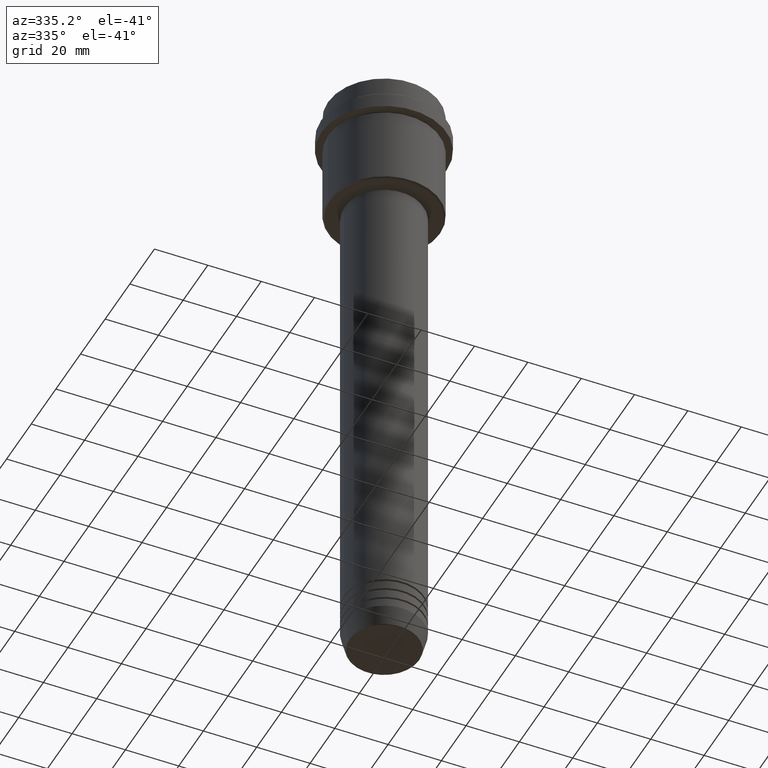
[diagram: clean part render]
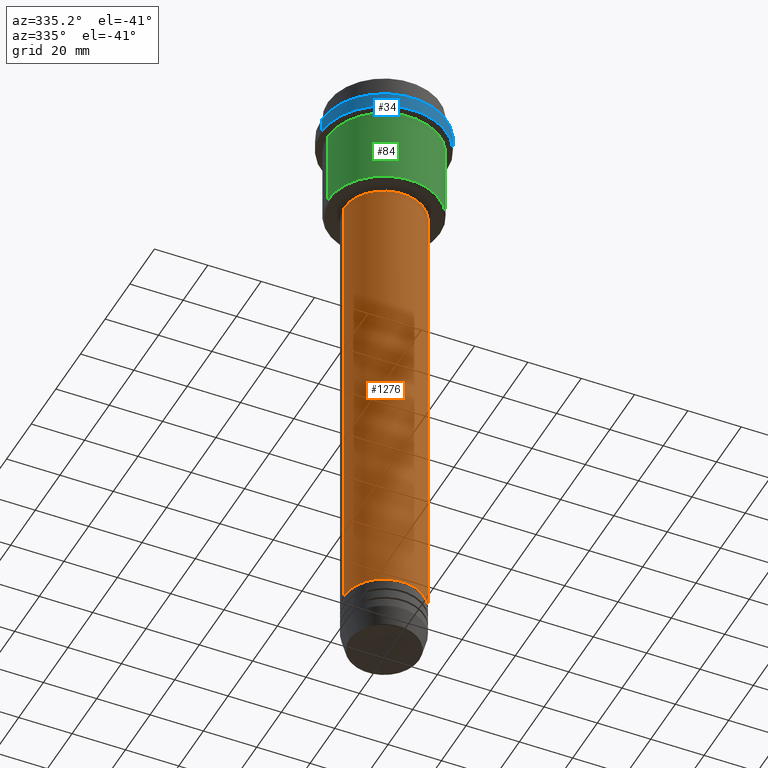
[diagram: same view with three faces highlighted in distinct colors, each labeled with its STEP entity id]
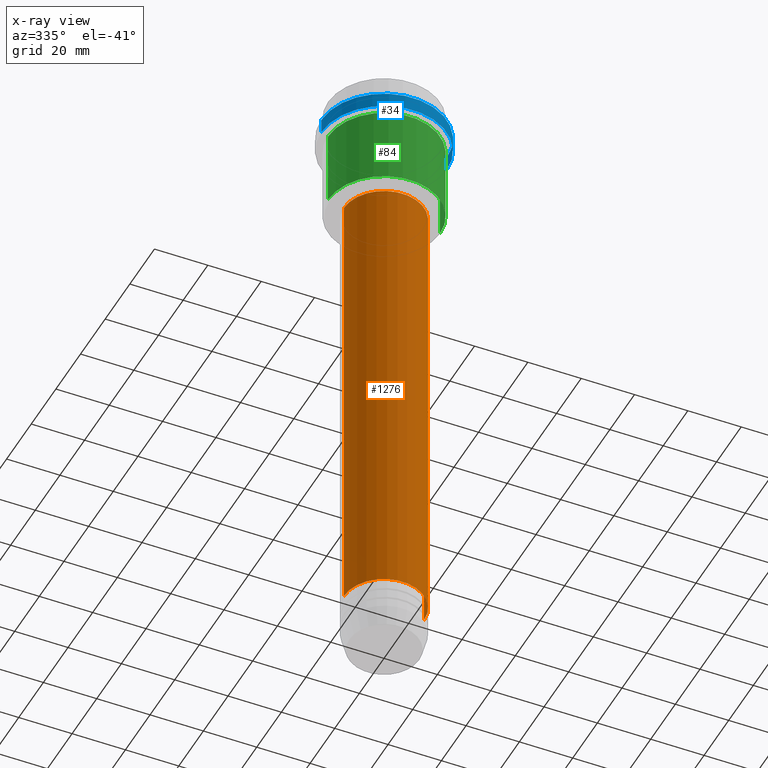
[diagram: x-ray of the same camera — body ghosted, the three highlighted faces saturated]
A machine part, auxiliary view with three faces highlighted in distinct colors.
The next image is the same camera in x-ray (body ghosted, the three faces saturated) — at least one of them is partly hidden behind the body in this view.
Their STEP definitions:

[orange] entity #1276 — the highlighted cylindrical surface (partial cylindrical patch) has radius 15 mm, axis along (-0, -0, 1).
#28 = CARTESIAN_POINT ( 'NONE',  ( -15.00000000000000000, 1.836970198721029589E-15, 0.000000000000000000 ) ) ;
#32 = CARTESIAN_POINT ( 'NONE',  ( 0.000000000000000000, 0.000000000000000000, -220.9999999999999432 ) ) ;
#164 = ORIENTED_EDGE ( 'NONE', *, *, #720, .T. ) ;
#227 = AXIS2_PLACEMENT_3D ( 'NONE', #1022, #454, #575 ) ;
#274 = LINE ( 'NONE', #28, #965 ) ;
#303 = EDGE_CURVE ( 'NONE', #323, #418, #595, .T. ) ;
#323 = VERTEX_POINT ( 'NONE', #592 ) ;
#330 = ORIENTED_EDGE ( 'NONE', *, *, #303, .F. ) ;
#366 = CARTESIAN_POINT ( 'NONE',  ( 0.000000000000000000, 0.000000000000000000, 0.000000000000000000 ) ) ;
#400 = CIRCLE ( 'NONE', #1155, 15.00000000000000000 ) ;
#403 = VERTEX_POINT ( 'NONE', #781 ) ;
#412 = CARTESIAN_POINT ( 'NONE',  ( -15.00000000000000000, 1.836970198721029589E-15, -220.9999999999999432 ) ) ;
#418 = VERTEX_POINT ( 'NONE', #1189 ) ;
#454 = DIRECTION ( 'NONE',  ( -0.000000000000000000, -0.000000000000000000, 1.000000000000000000 ) ) ;
#469 = DIRECTION ( 'NONE',  ( -0.000000000000000000, -0.000000000000000000, 1.000000000000000000 ) ) ;
#471 = DIRECTION ( 'NONE',  ( 1.000000000000000000, 0.000000000000000000, 0.000000000000000000 ) ) ;
#475 = FACE_OUTER_BOUND ( 'NONE', #1327, .T. ) ;
#488 = DIRECTION ( 'NONE',  ( -0.000000000000000000, -0.000000000000000000, 1.000000000000000000 ) ) ;
#514 = EDGE_CURVE ( 'NONE', #403, #418, #815, .T. ) ;
#540 = VERTEX_POINT ( 'NONE', #412 ) ;
#575 = DIRECTION ( 'NONE',  ( 1.000000000000000000, 0.000000000000000000, 0.000000000000000000 ) ) ;
#592 = CARTESIAN_POINT ( 'NONE',  ( -15.00000000000000000, 1.836970198721029589E-15, -46.00000000000002132 ) ) ;
#595 = CIRCLE ( 'NONE', #227, 15.00000000000000000 ) ;
#720 = EDGE_CURVE ( 'NONE', #540, #403, #400, .T. ) ;
#735 = CARTESIAN_POINT ( 'NONE',  ( 15.00000000000000000, 0.000000000000000000, 0.000000000000000000 ) ) ;
#781 = CARTESIAN_POINT ( 'NONE',  ( 15.00000000000000000, 0.000000000000000000, -220.9999999999999432 ) ) ;
#805 = DIRECTION ( 'NONE',  ( 1.000000000000000000, 0.000000000000000000, 0.000000000000000000 ) ) ;
#812 = DIRECTION ( 'NONE',  ( -0.000000000000000000, -0.000000000000000000, 1.000000000000000000 ) ) ;
#815 = LINE ( 'NONE', #735, #1360 ) ;
#905 = CYLINDRICAL_SURFACE ( 'NONE', #945, 15.00000000000000000 ) ;
#945 = AXIS2_PLACEMENT_3D ( 'NONE', #366, #812, #805 ) ;
#965 = VECTOR ( 'NONE', #469, 1000.000000000000000 ) ;
#1022 = CARTESIAN_POINT ( 'NONE',  ( 0.000000000000000000, 0.000000000000000000, -46.00000000000002132 ) ) ;
#1155 = AXIS2_PLACEMENT_3D ( 'NONE', #32, #1218, #471 ) ;
#1189 = CARTESIAN_POINT ( 'NONE',  ( 15.00000000000000000, 0.000000000000000000, -46.00000000000002132 ) ) ;
#1218 = DIRECTION ( 'NONE',  ( -0.000000000000000000, -0.000000000000000000, 1.000000000000000000 ) ) ;
#1232 = EDGE_CURVE ( 'NONE', #540, #323, #274, .T. ) ;
#1276 = ADVANCED_FACE ( 'NONE', ( #475 ), #905, .T. ) ;
#1303 = ORIENTED_EDGE ( 'NONE', *, *, #514, .T. ) ;
#1308 = ORIENTED_EDGE ( 'NONE', *, *, #1232, .F. ) ;
#1327 = EDGE_LOOP ( 'NONE', ( #1308, #164, #1303, #330 ) ) ;
#1360 = VECTOR ( 'NONE', #488, 1000.000000000000000 ) ;

[blue] entity #34 — the highlighted cylindrical surface (partial cylindrical patch) has radius 23.5 mm, axis along (-0, -0, 1).
#34 = ADVANCED_FACE ( 'NONE', ( #122 ), #560, .T. ) ;
#36 = DIRECTION ( 'NONE',  ( 1.000000000000000000, 0.000000000000000000, 0.000000000000000000 ) ) ;
#55 = CARTESIAN_POINT ( 'NONE',  ( 23.50000000000000000, 0.000000000000000000, 0.000000000000000000 ) ) ;
#62 = CARTESIAN_POINT ( 'NONE',  ( -23.50000000000000000, 2.877919977996280320E-15, -9.500000000000001776 ) ) ;
#101 = DIRECTION ( 'NONE',  ( 1.000000000000000000, 0.000000000000000000, 0.000000000000000000 ) ) ;
#122 = FACE_OUTER_BOUND ( 'NONE', #1147, .T. ) ;
#254 = DIRECTION ( 'NONE',  ( -0.000000000000000000, -0.000000000000000000, 1.000000000000000000 ) ) ;
#266 = VERTEX_POINT ( 'NONE', #1220 ) ;
#267 = ORIENTED_EDGE ( 'NONE', *, *, #1021, .T. ) ;
#305 = ORIENTED_EDGE ( 'NONE', *, *, #993, .F. ) ;
#310 = DIRECTION ( 'NONE',  ( 1.000000000000000000, 0.000000000000000000, 0.000000000000000000 ) ) ;
#327 = CIRCLE ( 'NONE', #1151, 23.50000000000000000 ) ;
#517 = CARTESIAN_POINT ( 'NONE',  ( -23.50000000000000000, 2.877919977996280320E-15, 0.000000000000000000 ) ) ;
#518 = VERTEX_POINT ( 'NONE', #62 ) ;
#560 = CYLINDRICAL_SURFACE ( 'NONE', #659, 23.50000000000000000 ) ;
#564 = ORIENTED_EDGE ( 'NONE', *, *, #1131, .T. ) ;
#637 = DIRECTION ( 'NONE',  ( -0.000000000000000000, -0.000000000000000000, 1.000000000000000000 ) ) ;
#646 = VECTOR ( 'NONE', #637, 1000.000000000000000 ) ;
#648 = AXIS2_PLACEMENT_3D ( 'NONE', #1318, #1323, #101 ) ;
#659 = AXIS2_PLACEMENT_3D ( 'NONE', #892, #254, #36 ) ;
#668 = CARTESIAN_POINT ( 'NONE',  ( 23.50000000000000355, 0.000000000000000000, -15.00000000000000178 ) ) ;
#892 = CARTESIAN_POINT ( 'NONE',  ( 0.000000000000000000, 0.000000000000000000, 0.000000000000000000 ) ) ;
#993 = EDGE_CURVE ( 'NONE', #266, #518, #1395, .T. ) ;
#1021 = EDGE_CURVE ( 'NONE', #1138, #518, #327, .T. ) ;
#1057 = ORIENTED_EDGE ( 'NONE', *, *, #1213, .T. ) ;
#1062 = VERTEX_POINT ( 'NONE', #668 ) ;
#1131 = EDGE_CURVE ( 'NONE', #266, #1062, #1174, .T. ) ;
#1133 = LINE ( 'NONE', #55, #1226 ) ;
#1138 = VERTEX_POINT ( 'NONE', #1222 ) ;
#1147 = EDGE_LOOP ( 'NONE', ( #305, #564, #1057, #267 ) ) ;
#1151 = AXIS2_PLACEMENT_3D ( 'NONE', #1298, #1402, #310 ) ;
#1174 = CIRCLE ( 'NONE', #648, 23.50000000000000355 ) ;
#1213 = EDGE_CURVE ( 'NONE', #1062, #1138, #1133, .T. ) ;
#1220 = CARTESIAN_POINT ( 'NONE',  ( -23.50000000000000711, 2.877919977996281109E-15, -15.00000000000000178 ) ) ;
#1222 = CARTESIAN_POINT ( 'NONE',  ( 23.50000000000000000, 0.000000000000000000, -9.500000000000001776 ) ) ;
#1226 = VECTOR ( 'NONE', #1342, 1000.000000000000000 ) ;
#1298 = CARTESIAN_POINT ( 'NONE',  ( 0.000000000000000000, 0.000000000000000000, -9.500000000000001776 ) ) ;
#1318 = CARTESIAN_POINT ( 'NONE',  ( 0.000000000000000000, 0.000000000000000000, -15.00000000000000178 ) ) ;
#1323 = DIRECTION ( 'NONE',  ( -0.000000000000000000, -0.000000000000000000, 1.000000000000000000 ) ) ;
#1342 = DIRECTION ( 'NONE',  ( -0.000000000000000000, -0.000000000000000000, 1.000000000000000000 ) ) ;
#1395 = LINE ( 'NONE', #517, #646 ) ;
#1402 = DIRECTION ( 'NONE',  ( 0.000000000000000000, 0.000000000000000000, -1.000000000000000000 ) ) ;

[green] entity #84 — the highlighted cylindrical surface (partial cylindrical patch) has radius 21 mm, axis along (-0, -0, 1).
#10 = VERTEX_POINT ( 'NONE', #103 ) ;
#78 = DIRECTION ( 'NONE',  ( 1.000000000000000000, 0.000000000000000000, 0.000000000000000000 ) ) ;
#84 = ADVANCED_FACE ( 'NONE', ( #712 ), #173, .T. ) ;
#103 = CARTESIAN_POINT ( 'NONE',  ( 20.99999999999999645, 0.000000000000000000, -44.50000000000005684 ) ) ;
#163 = EDGE_CURVE ( 'NONE', #1311, #655, #392, .T. ) ;
#173 = CYLINDRICAL_SURFACE ( 'NONE', #799, 20.99999999999999645 ) ;
#182 = EDGE_CURVE ( 'NONE', #1311, #10, #753, .T. ) ;
#198 = CARTESIAN_POINT ( 'NONE',  ( -20.99999999999999645, 2.571758278209441267E-15, 0.000000000000000000 ) ) ;
#247 = CARTESIAN_POINT ( 'NONE',  ( -20.99999999999999645, 2.571758278209441267E-15, -16.00000000000000355 ) ) ;
#250 = VECTOR ( 'NONE', #1056, 1000.000000000000000 ) ;
#259 = CIRCLE ( 'NONE', #1061, 20.99999999999999645 ) ;
#285 = DIRECTION ( 'NONE',  ( -1.000000000000000000, 0.000000000000000000, 0.000000000000000000 ) ) ;
#339 = LINE ( 'NONE', #452, #744 ) ;
#370 = VERTEX_POINT ( 'NONE', #794 ) ;
#392 = LINE ( 'NONE', #198, #250 ) ;
#405 = ORIENTED_EDGE ( 'NONE', *, *, #182, .T. ) ;
#409 = DIRECTION ( 'NONE',  ( 1.000000000000000000, 0.000000000000000000, 0.000000000000000000 ) ) ;
#452 = CARTESIAN_POINT ( 'NONE',  ( 20.99999999999999645, 0.000000000000000000, 0.000000000000000000 ) ) ;
#515 = DIRECTION ( 'NONE',  ( -0.000000000000000000, -0.000000000000000000, 1.000000000000000000 ) ) ;
#555 = ORIENTED_EDGE ( 'NONE', *, *, #624, .T. ) ;
#624 = EDGE_CURVE ( 'NONE', #10, #370, #339, .T. ) ;
#631 = CARTESIAN_POINT ( 'NONE',  ( 0.000000000000000000, 0.000000000000000000, 0.000000000000000000 ) ) ;
#655 = VERTEX_POINT ( 'NONE', #247 ) ;
#711 = ORIENTED_EDGE ( 'NONE', *, *, #1011, .F. ) ;
#712 = FACE_OUTER_BOUND ( 'NONE', #1016, .T. ) ;
#737 = CARTESIAN_POINT ( 'NONE',  ( 0.000000000000000000, 0.000000000000000000, -44.50000000000005684 ) ) ;
#744 = VECTOR ( 'NONE', #1002, 1000.000000000000000 ) ;
#753 = CIRCLE ( 'NONE', #1348, 20.99999999999999645 ) ;
#794 = CARTESIAN_POINT ( 'NONE',  ( 20.99999999999999645, 0.000000000000000000, -16.00000000000000355 ) ) ;
#799 = AXIS2_PLACEMENT_3D ( 'NONE', #631, #834, #409 ) ;
#834 = DIRECTION ( 'NONE',  ( -0.000000000000000000, -0.000000000000000000, 1.000000000000000000 ) ) ;
#948 = CARTESIAN_POINT ( 'NONE',  ( 0.000000000000000000, 0.000000000000000000, -16.00000000000000355 ) ) ;
#1002 = DIRECTION ( 'NONE',  ( -0.000000000000000000, -0.000000000000000000, 1.000000000000000000 ) ) ;
#1011 = EDGE_CURVE ( 'NONE', #655, #370, #259, .T. ) ;
#1016 = EDGE_LOOP ( 'NONE', ( #1364, #405, #555, #711 ) ) ;
#1056 = DIRECTION ( 'NONE',  ( -0.000000000000000000, -0.000000000000000000, 1.000000000000000000 ) ) ;
#1061 = AXIS2_PLACEMENT_3D ( 'NONE', #948, #1385, #78 ) ;
#1311 = VERTEX_POINT ( 'NONE', #1394 ) ;
#1348 = AXIS2_PLACEMENT_3D ( 'NONE', #737, #515, #285 ) ;
#1364 = ORIENTED_EDGE ( 'NONE', *, *, #163, .F. ) ;
#1385 = DIRECTION ( 'NONE',  ( -0.000000000000000000, -0.000000000000000000, 1.000000000000000000 ) ) ;
#1394 = CARTESIAN_POINT ( 'NONE',  ( -20.99999999999999645, 2.571758278209441267E-15, -44.50000000000005684 ) ) ;